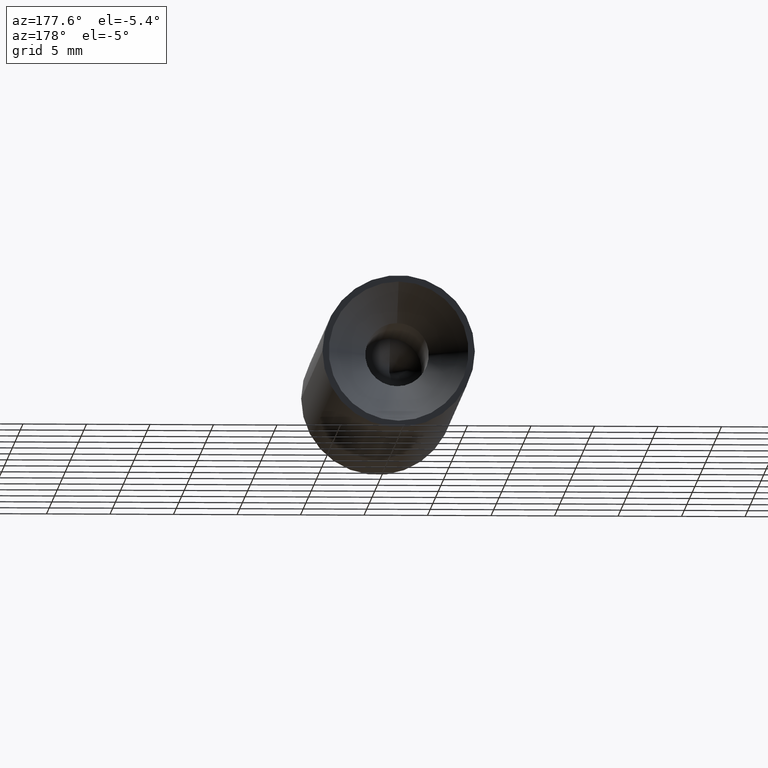
[diagram: clean part render]
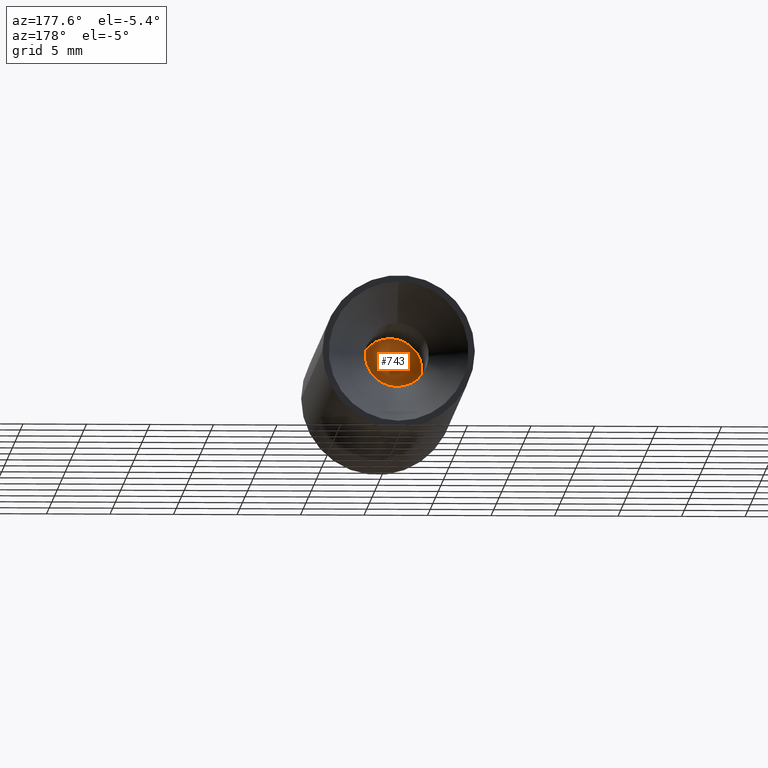
[diagram: same view with one face highlighted and labeled with its STEP entity id]
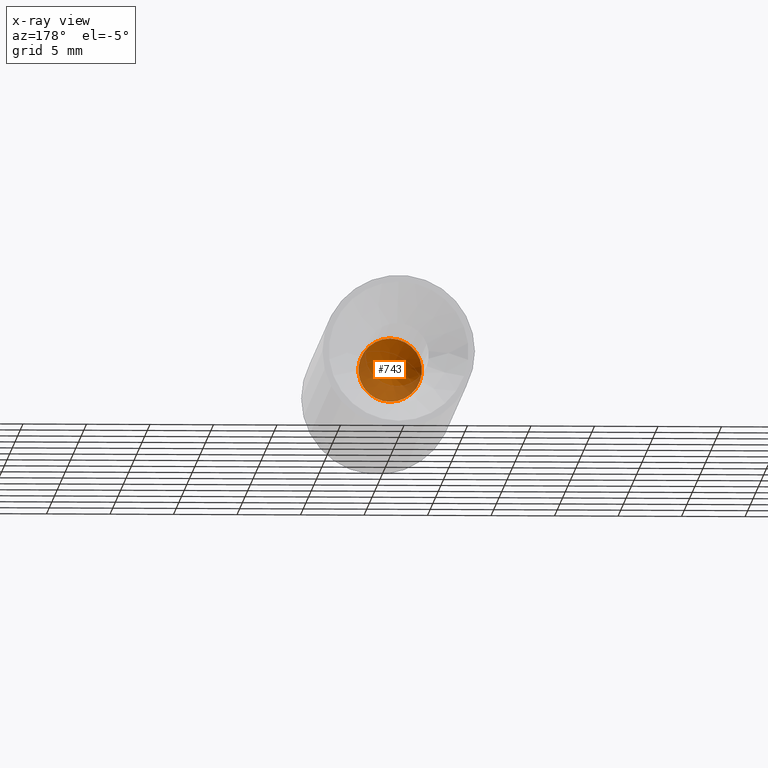
[diagram: x-ray of the same camera — body ghosted, the highlighted face saturated]
A machine part, auxiliary view. The second image highlights one B-rep face of the part: STEP entity #743.
The next image is the same camera in x-ray: the body ghosted, the highlighted face saturated — about 34% of this face is hidden behind the body in this view.
In plain terms, the highlighted conical surface has half-angle 59 deg.
Its self-contained STEP definition (entity closure, byte-faithful):
#559 = FACE_OUTER_BOUND ( 'NONE', #893, .T. ) ;
#743 = ADVANCED_FACE ( 'NONE', ( #559 ), #4693, .F. ) ;
#893 = EDGE_LOOP ( 'NONE', ( #3695 ) ) ;
#949 = DIRECTION ( 'NONE',  ( 0.000000000000000000, 0.000000000000000000, 1.000000000000000000 ) ) ;
#2113 = DIRECTION ( 'NONE',  ( -0.000000000000000000, 1.000000000000000000, -0.000000000000000000 ) ) ;
#3695 = ORIENTED_EDGE ( 'NONE', *, *, #8490, .T. ) ;
#4631 = DIRECTION ( 'NONE',  ( 0.000000000000000000, 0.000000000000000000, 1.000000000000000000 ) ) ;
#4693 = CONICAL_SURFACE ( 'NONE', #12611, 2.499999999999995559, 1.029744258676653201 ) ;
#5304 = VERTEX_POINT ( 'NONE', #9948 ) ;
#8181 = AXIS2_PLACEMENT_3D ( 'NONE', #12123, #11096, #4631 ) ;
#8490 = EDGE_CURVE ( 'NONE', #5304, #5304, #9996, .T. ) ;
#9948 = CARTESIAN_POINT ( 'NONE',  ( -1.400676323190717163E-31, 24.00000000000000000, 2.499999999999995559 ) ) ;
#9996 = CIRCLE ( 'NONE', #8181, 2.499999999999995559 ) ;
#10530 = CARTESIAN_POINT ( 'NONE',  ( -1.400676323190717163E-31, 24.00000000000000000, 0.000000000000000000 ) ) ;
#11096 = DIRECTION ( 'NONE',  ( -0.000000000000000000, 1.000000000000000000, -0.000000000000000000 ) ) ;
#12123 = CARTESIAN_POINT ( 'NONE',  ( -1.400676323190717163E-31, 24.00000000000000000, 0.000000000000000000 ) ) ;
#12611 = AXIS2_PLACEMENT_3D ( 'NONE', #10530, #2113, #949 ) ;